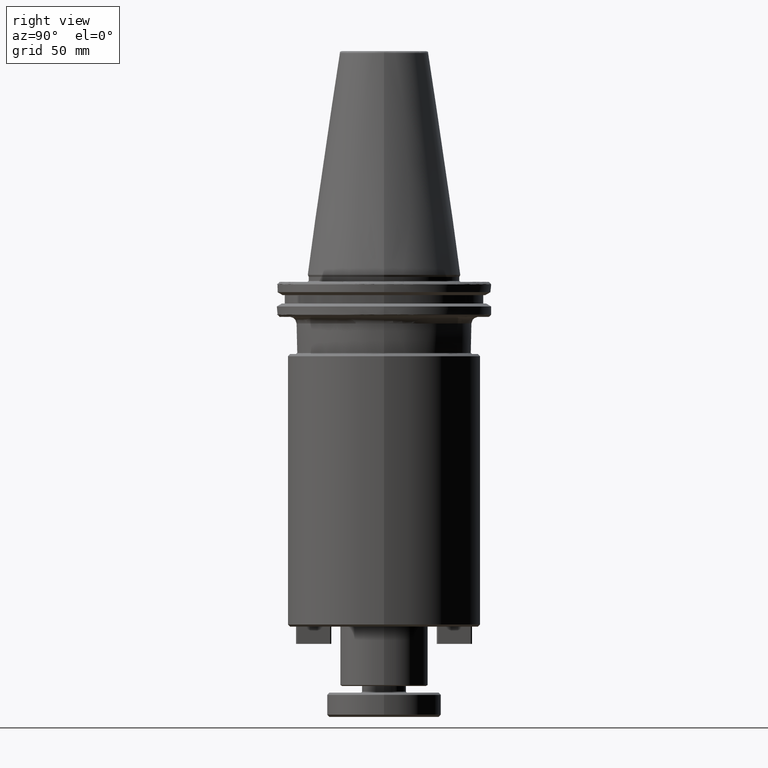
[diagram: clean part render]
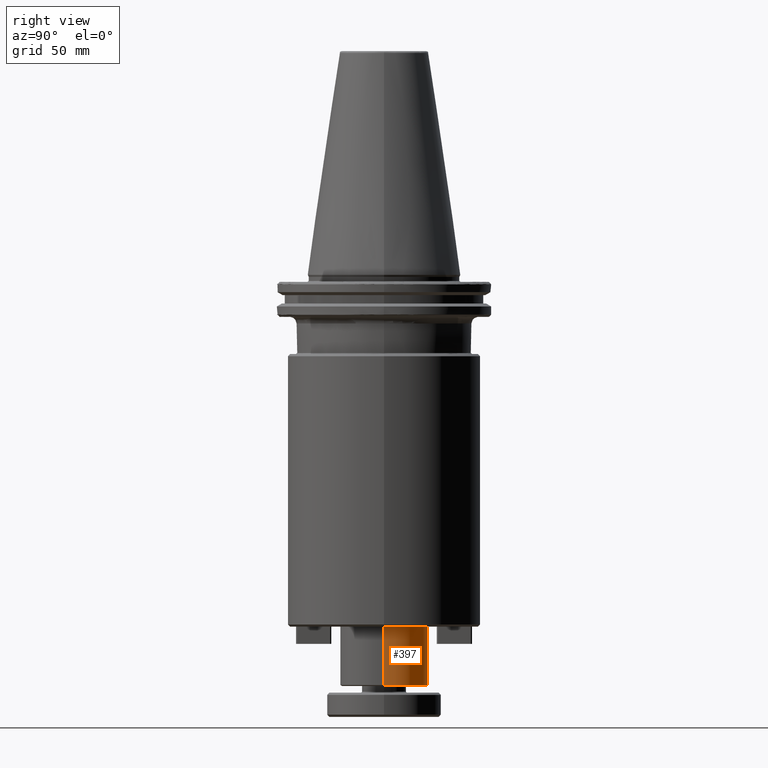
[diagram: same view with one face highlighted and labeled with its STEP entity id]
A machine part, right view. The second image highlights one B-rep face of the part: STEP entity #397.
In plain terms, the highlighted cylindrical surface (partial cylindrical patch) has radius 20 mm, axis along (0, 0, 1).
Its self-contained STEP definition (entity closure, byte-faithful):
#5 = DIRECTION ( 'NONE',  ( 0.0000000000000000000, 0.0000000000000000000, 1.000000000000000000 ) ) ;
#10 = CARTESIAN_POINT ( 'NONE',  ( 0.0000000000000000000, 0.0000000000000000000, -186.5092522711888400 ) ) ;
#25 = DIRECTION ( 'NONE',  ( 0.0000000000000000000, 0.0000000000000000000, 1.000000000000000000 ) ) ;
#27 = CIRCLE ( 'NONE', #1738, 20.00000000000000000 ) ;
#28 = AXIS2_PLACEMENT_3D ( 'NONE', #10, #5, #2828 ) ;
#44 = CARTESIAN_POINT ( 'NONE',  ( 20.00000000000000000, 0.0000000000000000000, 0.0000000000000000000 ) ) ;
#212 = ORIENTED_EDGE ( 'NONE', *, *, #3871, .F. ) ;
#342 = VECTOR ( 'NONE', #1450, 1000.000000000000000 ) ;
#397 = ADVANCED_FACE ( 'NONE', ( #1798 ), #573, .T. ) ;
#495 = CARTESIAN_POINT ( 'NONE',  ( 0.0000000000000000000, 0.0000000000000000000, 0.0000000000000000000 ) ) ;
#531 = ORIENTED_EDGE ( 'NONE', *, *, #2519, .T. ) ;
#573 = CYLINDRICAL_SURFACE ( 'NONE', #1423, 20.00000000000000000 ) ;
#756 = VERTEX_POINT ( 'NONE', #4822 ) ;
#824 = LINE ( 'NONE', #1446, #342 ) ;
#830 = EDGE_LOOP ( 'NONE', ( #4616, #531, #1788, #212 ) ) ;
#1423 = AXIS2_PLACEMENT_3D ( 'NONE', #495, #2798, #2521 ) ;
#1446 = CARTESIAN_POINT ( 'NONE',  ( -20.00000000000000000, 2.449293598294706500E-015, 0.0000000000000000000 ) ) ;
#1450 = DIRECTION ( 'NONE',  ( 0.0000000000000000000, 0.0000000000000000000, 1.000000000000000000 ) ) ;
#1489 = EDGE_CURVE ( 'NONE', #4046, #756, #27, .T. ) ;
#1563 = CIRCLE ( 'NONE', #28, 20.00000000000000000 ) ;
#1570 = CARTESIAN_POINT ( 'NONE',  ( -20.00000000000000000, 2.449293598294706500E-015, -186.5092522711888400 ) ) ;
#1738 = AXIS2_PLACEMENT_3D ( 'NONE', #3966, #3959, #3952 ) ;
#1788 = ORIENTED_EDGE ( 'NONE', *, *, #1489, .F. ) ;
#1798 = FACE_OUTER_BOUND ( 'NONE', #830, .T. ) ;
#2026 = VERTEX_POINT ( 'NONE', #2477 ) ;
#2477 = CARTESIAN_POINT ( 'NONE',  ( 20.00000000000000000, 0.0000000000000000000, -186.5092522711888400 ) ) ;
#2519 = EDGE_CURVE ( 'NONE', #4166, #756, #824, .T. ) ;
#2521 = DIRECTION ( 'NONE',  ( 1.000000000000000000, 0.0000000000000000000, 0.0000000000000000000 ) ) ;
#2798 = DIRECTION ( 'NONE',  ( 0.0000000000000000000, 0.0000000000000000000, 1.000000000000000000 ) ) ;
#2828 = DIRECTION ( 'NONE',  ( 1.000000000000000000, 0.0000000000000000000, 0.0000000000000000000 ) ) ;
#2898 = EDGE_CURVE ( 'NONE', #2026, #4166, #1563, .T. ) ;
#3295 = CARTESIAN_POINT ( 'NONE',  ( 20.00000000000000000, 0.0000000000000000000, -160.0000000000000000 ) ) ;
#3319 = VECTOR ( 'NONE', #25, 1000.000000000000000 ) ;
#3404 = LINE ( 'NONE', #44, #3319 ) ;
#3871 = EDGE_CURVE ( 'NONE', #2026, #4046, #3404, .T. ) ;
#3952 = DIRECTION ( 'NONE',  ( 1.000000000000000000, 0.0000000000000000000, 0.0000000000000000000 ) ) ;
#3959 = DIRECTION ( 'NONE',  ( 0.0000000000000000000, 0.0000000000000000000, 1.000000000000000000 ) ) ;
#3966 = CARTESIAN_POINT ( 'NONE',  ( 0.0000000000000000000, 0.0000000000000000000, -160.0000000000000000 ) ) ;
#4046 = VERTEX_POINT ( 'NONE', #3295 ) ;
#4166 = VERTEX_POINT ( 'NONE', #1570 ) ;
#4616 = ORIENTED_EDGE ( 'NONE', *, *, #2898, .T. ) ;
#4822 = CARTESIAN_POINT ( 'NONE',  ( -20.00000000000000000, 2.449293598294706500E-015, -160.0000000000000000 ) ) ;